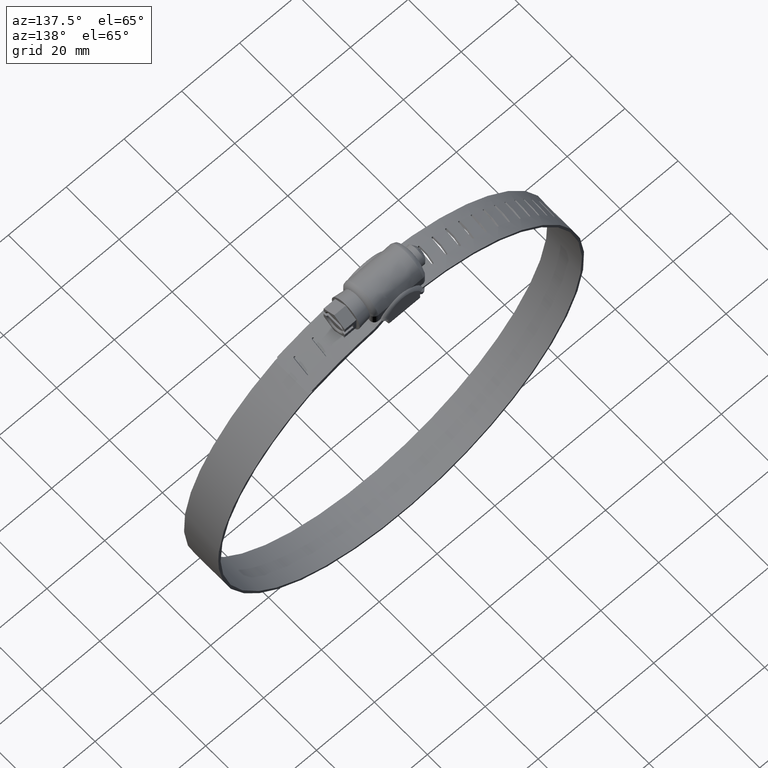
[diagram: clean part render]
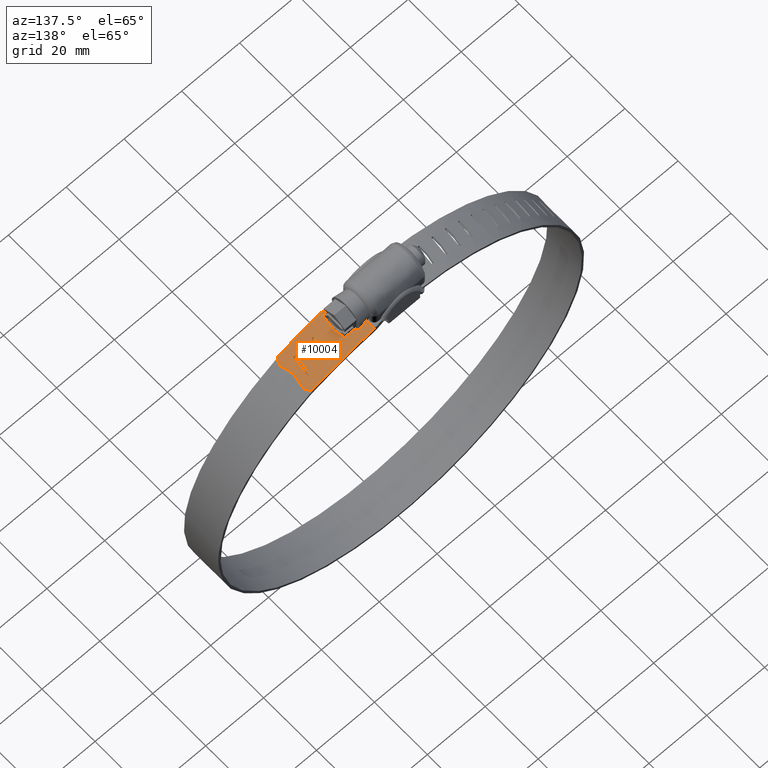
[diagram: same view with one face highlighted and labeled with its STEP entity id]
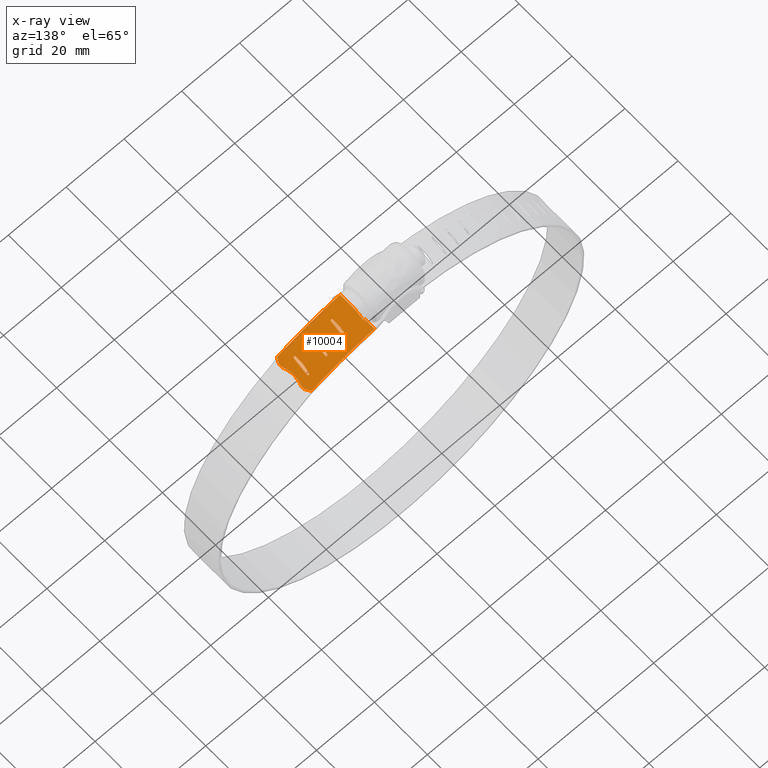
[diagram: x-ray of the same camera — body ghosted, the highlighted face saturated]
A machine part, auxiliary view. The second image highlights one B-rep face of the part: STEP entity #10004.
The next image is the same camera in x-ray: the body ghosted, the highlighted face saturated — about 0% of this face is hidden behind the body in this view.
In plain terms, the highlighted face is a freeform B-spline surface patch.
Its self-contained STEP definition (entity closure, byte-faithful):
#8290=CARTESIAN_POINT('',(31.567367597123400,-2.061301204482620,4.818551866047019));
#8291=VERTEX_POINT('',#8290);
#8292=CARTESIAN_POINT('',(31.567367597123400,2.061301204482865,4.818551866047000));
#8293=VERTEX_POINT('',#8292);
#8294=CARTESIAN_POINT('',(31.567367597123400,-2.061301204482620,4.818551866047019));
#8295=CARTESIAN_POINT('',(31.359252102324209,-1.222315483176892,4.906911757007364));
#8296=CARTESIAN_POINT('',(31.232741156083058,0.179749158686067,4.960624688982378));
#8297=CARTESIAN_POINT('',(31.442790638238169,1.557887481813539,4.871443682266150));
#8298=CARTESIAN_POINT('',(31.567367597123400,2.061301204482865,4.818551866047000));
#8299=B_SPLINE_CURVE_WITH_KNOTS('',3,(#8294,#8295,#8296,#8297,#8298),.UNSPECIFIED.,.F.,.U.,(4,1,4),(0.000000036026217,2.606497819243899,4.170396811498621),.UNSPECIFIED.);
#8300=EDGE_CURVE('',#8291,#8293,#8299,.T.);
#8341=CARTESIAN_POINT('',(31.967261873829099,3.681800700683205,4.646856470161220));
#8342=VERTEX_POINT('',#8341);
#8343=CARTESIAN_POINT('',(31.766142777219802,5.226117512658781,4.733508991008200));
#8344=VERTEX_POINT('',#8343);
#8345=CARTESIAN_POINT('',(31.967261873829099,3.681800700683205,4.646856470161220));
#8346=CARTESIAN_POINT('',(32.023024767648643,3.907534467773651,4.622830736958171));
#8347=CARTESIAN_POINT('',(32.065576458267913,4.448197671426959,4.604497011779581));
#8348=CARTESIAN_POINT('',(31.909388063521622,4.969138916187402,4.671791258001895));
#8349=CARTESIAN_POINT('',(31.766142777219802,5.226117512658781,4.733508991008200));
#8350=B_SPLINE_CURVE_WITH_KNOTS('',3,(#8345,#8346,#8347,#8348,#8349),.UNSPECIFIED.,.F.,.U.,(4,1,4),(0.000000126657784,0.701271897874830,1.602856264230856),.UNSPECIFIED.);
#8351=EDGE_CURVE('',#8342,#8344,#8350,.T.);
#8392=CARTESIAN_POINT('',(31.766142777219802,-5.226117512658931,4.733508991008200));
#8393=VERTEX_POINT('',#8392);
#8394=CARTESIAN_POINT('',(31.967261873829148,-3.681800700683240,4.646856470161190));
#8395=VERTEX_POINT('',#8394);
#8396=CARTESIAN_POINT('',(31.766142777219802,-5.226117512658931,4.733508991008200));
#8397=CARTESIAN_POINT('',(31.909388923875909,-4.969156309651399,4.671690853613392));
#8398=CARTESIAN_POINT('',(32.065583129241674,-4.448206504725769,4.604313598810845));
#8399=CARTESIAN_POINT('',(32.023027622746362,-3.907530052816502,4.622751905894250));
#8400=CARTESIAN_POINT('',(31.967261873829148,-3.681800700683240,4.646856470161190));
#8401=B_SPLINE_CURVE_WITH_KNOTS('',3,(#8396,#8397,#8398,#8399,#8400),.UNSPECIFIED.,.F.,.U.,(4,1,4),(0.000000126840475,0.901602121273802,1.602887632622785),.UNSPECIFIED.);
#8402=EDGE_CURVE('',#8393,#8395,#8401,.T.);
#8533=CARTESIAN_POINT('',(9.627376152439330,2.660775000000000,10.875565962311001));
#8534=VERTEX_POINT('',#8533);
#8540=CARTESIAN_POINT('',(9.253488013358689,3.012298613065150,10.925783664387460));
#8541=VERTEX_POINT('',#8540);
#8542=CARTESIAN_POINT('',(9.627376152439330,2.660775000000000,10.875565962311001));
#8543=CARTESIAN_POINT('',(9.636417148187112,2.704897591910244,10.874409311186371));
#8544=CARTESIAN_POINT('',(9.634305340323261,2.803894741844744,10.874799257863581));
#8545=CARTESIAN_POINT('',(9.555340692460298,2.949960612192733,10.885483871076429));
#8546=CARTESIAN_POINT('',(9.407639261622048,3.030137333683885,10.905257648566240));
#8547=CARTESIAN_POINT('',(9.296477600165165,3.024480571779188,10.920067281729230));
#8548=CARTESIAN_POINT('',(9.253488013358689,3.012298613065150,10.925783664387460));
#8549=B_SPLINE_CURVE_WITH_KNOTS('',3,(#8542,#8543,#8544,#8545,#8546,#8547,#8548),.UNSPECIFIED.,.F.,.U.,(4,1,1,1,4),(0.000001127711989,0.135200140259626,0.289768500560617,0.482881645616490,0.618080658164132),.UNSPECIFIED.);
#8550=EDGE_CURVE('',#8534,#8541,#8549,.T.);
#8620=CARTESIAN_POINT('',(9.253488013358689,-0.889468689487472,10.925783664387460));
#8621=VERTEX_POINT('',#8620);
#8627=CARTESIAN_POINT('',(9.253488013358689,-0.889468689487472,10.925783664387460));
#8628=CARTESIAN_POINT('',(9.627376152439330,2.660775000000000,10.875565962311001));
#8629=QUASI_UNIFORM_CURVE('',1,(#8627,#8628),.UNSPECIFIED.,.F.,.U.);
#8630=EDGE_CURVE('',#8621,#8534,#8629,.T.);
#8747=CARTESIAN_POINT('',(15.083475572383350,0.026072965606650,9.949520309686221));
#8748=VERTEX_POINT('',#8747);
#8754=CARTESIAN_POINT('',(15.051591938738650,-0.282941999999991,9.955994630431059));
#8755=VERTEX_POINT('',#8754);
#8756=CARTESIAN_POINT('',(15.083475572383350,0.026072965606650,9.949520309686221));
#8757=CARTESIAN_POINT('',(15.062266162340579,-0.075410111331970,9.953828797465905));
#8758=CARTESIAN_POINT('',(15.051553267173530,-0.179175275632895,9.956004169104144));
#8759=CARTESIAN_POINT('',(15.051591938738650,-0.282941999999991,9.955994630431059));
#8760=B_SPLINE_CURVE_WITH_KNOTS('',3,(#8756,#8757,#8758,#8759),.UNSPECIFIED.,.F.,.U.,(4,4),(4.844942E-009,0.311305234252040),.UNSPECIFIED.);
#8761=EDGE_CURVE('',#8748,#8755,#8760,.T.);
#8787=CARTESIAN_POINT('',(15.645450989726600,2.723240999999915,9.833326323261391));
#8788=VERTEX_POINT('',#8787);
#8794=CARTESIAN_POINT('',(15.645450989726600,2.723240999999915,9.833326323261391));
#8795=CARTESIAN_POINT('',(15.083475572383350,0.026072965606650,9.949520309686221));
#8796=QUASI_UNIFORM_CURVE('',1,(#8794,#8795),.UNSPECIFIED.,.F.,.U.);
#8797=EDGE_CURVE('',#8788,#8748,#8796,.T.);
#8828=CARTESIAN_POINT('',(16.231340731334850,2.660775000000000,9.707986532453310));
#8829=VERTEX_POINT('',#8828);
#8835=CARTESIAN_POINT('',(15.972489286790690,3.021628469650861,9.763892827731795));
#8836=VERTEX_POINT('',#8835);
#8837=CARTESIAN_POINT('',(16.231340731334850,2.660775000000000,9.707986532453310));
#8838=CARTESIAN_POINT('',(16.241597420287668,2.712195150379346,9.705883252680716));
#8839=CARTESIAN_POINT('',(16.235604892159280,2.809659686561769,9.707329296362854));
#8840=CARTESIAN_POINT('',(16.151002151910589,2.957870999354890,9.725653213825559));
#8841=CARTESIAN_POINT('',(16.044143607241150,3.014319948891103,9.748574749354818));
#8842=CARTESIAN_POINT('',(15.972489286790690,3.021628469650861,9.763892827731795));
#8843=B_SPLINE_CURVE_WITH_KNOTS('',3,(#8837,#8838,#8839,#8840,#8841,#8842),.UNSPECIFIED.,.F.,.U.,(4,1,1,4),(0.000001958210072,0.157492497883717,0.283432821563232,0.503934428868161),.UNSPECIFIED.);
#8844=EDGE_CURVE('',#8829,#8836,#8843,.T.);
#8846=CARTESIAN_POINT('',(15.972489286790690,3.021628469650861,9.763892827731795));
#8847=CARTESIAN_POINT('',(15.931610865642000,3.026067976756749,9.772644070041681));
#8848=CARTESIAN_POINT('',(15.837535584610430,3.016122322039074,9.792748733819911));
#8849=CARTESIAN_POINT('',(15.694394675965800,2.922002593972718,9.823202213165628));
#8850=CARTESIAN_POINT('',(15.645598683404200,2.796974932151916,9.833422541460257));
#8851=CARTESIAN_POINT('',(15.645450989726600,2.723240999999915,9.833326323261391));
#8852=B_SPLINE_CURVE_WITH_KNOTS('',3,(#8846,#8847,#8848,#8849,#8850,#8851),.UNSPECIFIED.,.F.,.U.,(4,1,1,4),(0.000001253553547,0.126207492636540,0.283934196305537,0.504826106113624),.UNSPECIFIED.);
#8853=EDGE_CURVE('',#8836,#8788,#8852,.T.);
#8886=CARTESIAN_POINT('',(15.645450989726649,-2.976759000000185,9.833326323261501));
#8887=VERTEX_POINT('',#8886);
#8893=CARTESIAN_POINT('',(15.645450989726649,-2.976759000000185,9.833326323261501));
#8894=CARTESIAN_POINT('',(16.231340731334850,2.660775000000000,9.707986532453310));
#8895=QUASI_UNIFORM_CURVE('',1,(#8893,#8894),.UNSPECIFIED.,.F.,.U.);
#8896=EDGE_CURVE('',#8887,#8829,#8895,.T.);
#8927=CARTESIAN_POINT('',(15.051591938738650,-2.976759000000185,9.955994630431059));
#8928=VERTEX_POINT('',#8927);
#8934=CARTESIAN_POINT('',(15.348654759469641,-3.276758994362510,9.895182467323204));
#8935=VERTEX_POINT('',#8934);
#8936=CARTESIAN_POINT('',(15.051591938738650,-2.976759000000185,9.955994630431059));
#8937=CARTESIAN_POINT('',(15.051986222441000,-3.016171442504892,9.955985373893652));
#8938=CARTESIAN_POINT('',(15.070094151403270,-3.104709329094481,9.952407143739910));
#8939=CARTESIAN_POINT('',(15.165623303774510,-3.234621038111459,9.932912476203430));
#8940=CARTESIAN_POINT('',(15.280995387609821,-3.277138210806109,9.909158959574313));
#8941=CARTESIAN_POINT('',(15.348654759469641,-3.276758994362510,9.895182467323204));
#8942=B_SPLINE_CURVE_WITH_KNOTS('',3,(#8936,#8937,#8938,#8939,#8940,#8941),.UNSPECIFIED.,.F.,.U.,(4,1,1,4),(0.000001218492454,0.118324086100491,0.266208462667175,0.473292625041223),.UNSPECIFIED.);
#8943=EDGE_CURVE('',#8928,#8935,#8942,.T.);
#8945=CARTESIAN_POINT('',(15.348654759469641,-3.276758994362510,9.895182467323204));
#8946=CARTESIAN_POINT('',(15.396897822520611,-3.276835600603909,9.885217449038930));
#8947=CARTESIAN_POINT('',(15.503115749688350,-3.249832070620958,9.863227457390227));
#8948=CARTESIAN_POINT('',(15.617507329990319,-3.134202844884233,9.839386778511283));
#8949=CARTESIAN_POINT('',(15.645041066519600,-3.026023266391151,9.833501229204249));
#8950=CARTESIAN_POINT('',(15.645450989726649,-2.976759000000185,9.833326323261501));
#8951=B_SPLINE_CURVE_WITH_KNOTS('',3,(#8945,#8946,#8947,#8948,#8949,#8950),.UNSPECIFIED.,.F.,.U.,(4,1,1,4),(0.000001299733220,0.147901996148229,0.325341942136903,0.473242672481916),.UNSPECIFIED.);
#8952=EDGE_CURVE('',#8935,#8887,#8951,.T.);
#8984=CARTESIAN_POINT('',(15.051591938738650,-0.282941999999991,9.955994630431059));
#8985=CARTESIAN_POINT('',(15.051591938738650,-2.976759000000185,9.955994630431059));
#8986=QUASI_UNIFORM_CURVE('',1,(#8984,#8985),.UNSPECIFIED.,.F.,.U.);
#8987=EDGE_CURVE('',#8755,#8928,#8986,.T.);
#9014=CARTESIAN_POINT('',(21.597964113140549,0.026072965606638,8.356714942833479));
#9015=VERTEX_POINT('',#9014);
#9021=CARTESIAN_POINT('',(21.566686735448901,-0.282941999999991,8.365670866472511));
#9022=VERTEX_POINT('',#9021);
#9023=CARTESIAN_POINT('',(21.597964113140549,0.026072965606638,8.356714942833479));
#9024=CARTESIAN_POINT('',(21.577151653235632,-0.075410240383017,8.362676074195798));
#9025=CARTESIAN_POINT('',(21.566655235201718,-0.179176803818021,8.365681603827596));
#9026=CARTESIAN_POINT('',(21.566686735448901,-0.282941999999991,8.365670866472511));
#9027=B_SPLINE_CURVE_WITH_KNOTS('',3,(#9023,#9024,#9025,#9026),.UNSPECIFIED.,.F.,.U.,(4,4),(4.844941E-009,0.311305234252023),.UNSPECIFIED.);
#9028=EDGE_CURVE('',#9015,#9022,#9027,.T.);
#9054=CARTESIAN_POINT('',(22.149090672718248,2.723240999999915,8.196787060625210));
#9055=VERTEX_POINT('',#9054);
#9061=CARTESIAN_POINT('',(22.149090672718248,2.723240999999915,8.196787060625210));
#9062=CARTESIAN_POINT('',(21.597964113140549,0.026072965606638,8.356714942833479));
#9063=QUASI_UNIFORM_CURVE('',1,(#9061,#9062),.UNSPECIFIED.,.F.,.U.);
#9064=EDGE_CURVE('',#9055,#9015,#9063,.T.);
#9095=CARTESIAN_POINT('',(22.723340265138351,2.660775000000000,8.025865271239070));
#9096=VERTEX_POINT('',#9095);
#9102=CARTESIAN_POINT('',(22.469673130583029,3.021628469650863,8.101908476333934));
#9103=VERTEX_POINT('',#9102);
#9104=CARTESIAN_POINT('',(22.723340265138351,2.660775000000000,8.025865271239070));
#9105=CARTESIAN_POINT('',(22.737755885414781,2.732867202534254,8.021704743519324));
#9106=CARTESIAN_POINT('',(22.717614856773810,2.854054848970019,8.027903344759331));
#9107=CARTESIAN_POINT('',(22.607032935292061,2.981085264149725,8.061000483507312));
#9108=CARTESIAN_POINT('',(22.519703691058002,3.016193017248475,8.087024775325681));
#9109=CARTESIAN_POINT('',(22.469673130583029,3.021628469650863,8.101908476333934));
#9110=B_SPLINE_CURVE_WITH_KNOTS('',3,(#9104,#9105,#9106,#9107,#9108,#9109),.UNSPECIFIED.,.F.,.U.,(4,1,1,4),(0.000001958210167,0.220503565482019,0.346443889184330,0.503934428868452),.UNSPECIFIED.);
#9111=EDGE_CURVE('',#9096,#9103,#9110,.T.);
#9113=CARTESIAN_POINT('',(22.469673130583029,3.021628469650863,8.101908476333934));
#9114=CARTESIAN_POINT('',(22.409550235715290,3.028453677949730,8.119813297484319));
#9115=CARTESIAN_POINT('',(22.295731287198461,3.003164737525374,8.153641428399814));
#9116=CARTESIAN_POINT('',(22.177310176418761,2.880563799294565,8.188667079495806));
#9117=CARTESIAN_POINT('',(22.149409634727331,2.775855824553438,8.196785186235930));
#9118=CARTESIAN_POINT('',(22.149090672718248,2.723240999999915,8.196787060625210));
#9119=B_SPLINE_CURVE_WITH_KNOTS('',3,(#9113,#9114,#9115,#9116,#9117,#9118),.UNSPECIFIED.,.F.,.U.,(4,1,1,4),(0.000001253553463,0.189338970172967,0.347056723533111,0.504826106113142),.UNSPECIFIED.);
#9120=EDGE_CURVE('',#9103,#9055,#9119,.T.);
#9153=CARTESIAN_POINT('',(22.149090672718248,-2.976759000000185,8.196787060625210));
#9154=VERTEX_POINT('',#9153);
#9160=CARTESIAN_POINT('',(22.149090672718248,-2.976759000000185,8.196787060625210));
#9161=CARTESIAN_POINT('',(22.723340265138351,2.660775000000000,8.025865271239070));
#9162=QUASI_UNIFORM_CURVE('',1,(#9160,#9161),.UNSPECIFIED.,.F.,.U.);
#9163=EDGE_CURVE('',#9154,#9096,#9162,.T.);
#9194=CARTESIAN_POINT('',(21.566686735448901,-2.976759000000185,8.365670866472511));
#9195=VERTEX_POINT('',#9194);
#9201=CARTESIAN_POINT('',(21.858062543316340,-3.276758994362509,8.281738886679573));
#9202=VERTEX_POINT('',#9201);
#9203=CARTESIAN_POINT('',(21.566686735448901,-2.976759000000185,8.365670866472511));
#9204=CARTESIAN_POINT('',(21.567079077446628,-3.016171442504867,8.365630703327156));
#9205=CARTESIAN_POINT('',(21.584850441004921,-3.104709329094380,8.360642771930907));
#9206=CARTESIAN_POINT('',(21.678555574894151,-3.234621038111344,8.333713069037710));
#9207=CARTESIAN_POINT('',(21.791708325663269,-3.277138210806037,8.300980787203114));
#9208=CARTESIAN_POINT('',(21.858062543316340,-3.276758994362509,8.281738886679573));
#9209=B_SPLINE_CURVE_WITH_KNOTS('',3,(#9203,#9204,#9205,#9206,#9207,#9208),.UNSPECIFIED.,.F.,.U.,(4,1,1,4),(0.000001218492302,0.118324086100351,0.266208462666985,0.473292625040969),.UNSPECIFIED.);
#9210=EDGE_CURVE('',#9195,#9202,#9209,.T.);
#9212=CARTESIAN_POINT('',(21.858062543316340,-3.276758994362509,8.281738886679573));
#9213=CARTESIAN_POINT('',(21.924403070718231,-3.277125392956378,8.262502325662339));
#9214=CARTESIAN_POINT('',(22.037518444743650,-3.234607921412811,8.229622031863180));
#9215=CARTESIAN_POINT('',(22.131043866676780,-3.104690727079668,8.202259150557955));
#9216=CARTESIAN_POINT('',(22.148740921000421,-3.016162876856863,8.196962071668091));
#9217=CARTESIAN_POINT('',(22.149090672718248,-2.976759000000185,8.196787060625210));
#9218=B_SPLINE_CURVE_WITH_KNOTS('',3,(#9212,#9213,#9214,#9215,#9216,#9217),.UNSPECIFIED.,.F.,.U.,(4,1,1,4),(0.000001299733178,0.207063565770869,0.354932313326631,0.473242672482194),.UNSPECIFIED.);
#9219=EDGE_CURVE('',#9202,#9154,#9218,.T.);
#9251=CARTESIAN_POINT('',(21.566686735448901,-0.282941999999991,8.365670866472511));
#9252=CARTESIAN_POINT('',(21.566686735448901,-2.976759000000185,8.365670866472511));
#9253=QUASI_UNIFORM_CURVE('',1,(#9251,#9252),.UNSPECIFIED.,.F.,.U.);
#9254=EDGE_CURVE('',#9022,#9195,#9253,.T.);
#9278=CARTESIAN_POINT('',(31.057078626003349,-6.500000000000000,5.034154456385170));
#9279=VERTEX_POINT('',#9278);
#9280=CARTESIAN_POINT('',(31.057078626003349,-6.500000000000000,5.034154456385170));
#9281=CARTESIAN_POINT('',(31.766142777219802,-5.226117512658931,4.733508991008200));
#9282=QUASI_UNIFORM_CURVE('',1,(#9280,#9281),.UNSPECIFIED.,.F.,.U.);
#9283=EDGE_CURVE('',#9279,#8393,#9282,.T.);
#9298=CARTESIAN_POINT('',(31.057078626003300,6.500000000000000,5.034154456385000));
#9299=VERTEX_POINT('',#9298);
#9300=CARTESIAN_POINT('',(31.766142777219802,5.226117512658781,4.733508991008200));
#9301=CARTESIAN_POINT('',(31.057078626003300,6.500000000000000,5.034154456385000));
#9302=QUASI_UNIFORM_CURVE('',1,(#9300,#9301),.UNSPECIFIED.,.F.,.U.);
#9303=EDGE_CURVE('',#8344,#9299,#9302,.T.);
#9332=CARTESIAN_POINT('',(31.967261873829148,-3.681800700683240,4.646856470161190));
#9333=CARTESIAN_POINT('',(31.567367597123400,-2.061301204482620,4.818551866047019));
#9334=QUASI_UNIFORM_CURVE('',1,(#9332,#9333),.UNSPECIFIED.,.F.,.U.);
#9335=EDGE_CURVE('',#8395,#8291,#9334,.T.);
#9346=CARTESIAN_POINT('',(31.567367597123400,2.061301204482865,4.818551866047000));
#9347=CARTESIAN_POINT('',(31.967261873829099,3.681800700683205,4.646856470161220));
#9348=QUASI_UNIFORM_CURVE('',1,(#9346,#9347),.UNSPECIFIED.,.F.,.U.);
#9349=EDGE_CURVE('',#8293,#8342,#9348,.T.);
#9377=CARTESIAN_POINT('',(27.967400591073751,0.026072965606638,6.257698783317570));
#9378=VERTEX_POINT('',#9377);
#9384=CARTESIAN_POINT('',(27.936922304769251,-0.282941999999991,6.269081093603300));
#9385=VERTEX_POINT('',#9384);
#9386=CARTESIAN_POINT('',(27.967400591073751,0.026072965606638,6.257698783317570));
#9387=CARTESIAN_POINT('',(27.947119994013029,-0.075410240383013,6.265274465285330));
#9388=CARTESIAN_POINT('',(27.936891744070039,-0.179176803818021,6.269094269339647));
#9389=CARTESIAN_POINT('',(27.936922304769251,-0.282941999999991,6.269081093603300));
#9390=B_SPLINE_CURVE_WITH_KNOTS('',3,(#9386,#9387,#9388,#9389),.UNSPECIFIED.,.F.,.U.,(4,4),(4.844947E-009,0.311305234252032),.UNSPECIFIED.);
#9391=EDGE_CURVE('',#9378,#9385,#9390,.T.);
#9417=CARTESIAN_POINT('',(28.504280414377551,2.723240999999915,6.055023013900819));
#9418=VERTEX_POINT('',#9417);
#9424=CARTESIAN_POINT('',(28.504280414377551,2.723240999999915,6.055023013900819));
#9425=CARTESIAN_POINT('',(27.967400591073751,0.026072965606638,6.257698783317570));
#9426=QUASI_UNIFORM_CURVE('',1,(#9424,#9425),.UNSPECIFIED.,.F.,.U.);
#9427=EDGE_CURVE('',#9418,#9378,#9426,.T.);
#9458=CARTESIAN_POINT('',(29.063349417914949,2.660775000000000,5.839573015605819));
#9459=VERTEX_POINT('',#9458);
#9465=CARTESIAN_POINT('',(28.816430535586431,3.021628469650857,5.935284298870529));
#9466=VERTEX_POINT('',#9465);
#9467=CARTESIAN_POINT('',(29.063349417914949,2.660775000000000,5.839573015605819));
#9468=CARTESIAN_POINT('',(29.073157329161209,2.712205035365610,5.835888636631610));
#9469=CARTESIAN_POINT('',(29.067446180454841,2.809656403256296,5.838261456500273));
#9470=CARTESIAN_POINT('',(28.986762252316041,2.957828631005152,5.869590363522166));
#9471=CARTESIAN_POINT('',(28.884804549184459,3.014376993495904,5.908946419448006));
#9472=CARTESIAN_POINT('',(28.816430535586431,3.021628469650857,5.935284298870529));
#9473=B_SPLINE_CURVE_WITH_KNOTS('',3,(#9467,#9468,#9469,#9470,#9471,#9472),.UNSPECIFIED.,.F.,.U.,(4,1,1,4),(0.000001958210278,0.157492497883948,0.283432821563459,0.503934428868370),.UNSPECIFIED.);
#9474=EDGE_CURVE('',#9459,#9466,#9473,.T.);
#9476=CARTESIAN_POINT('',(28.816430535586431,3.021628469650857,5.935284298870529));
#9477=CARTESIAN_POINT('',(28.767624273705710,3.027273419384963,5.954101059918260));
#9478=CARTESIAN_POINT('',(28.677513502119979,3.011912042579525,5.988795520781215));
#9479=CARTESIAN_POINT('',(28.547159629822961,2.911483955317478,6.038842321910598));
#9480=CARTESIAN_POINT('',(28.504441942637008,2.797008683381831,6.055094772803087));
#9481=CARTESIAN_POINT('',(28.504280414377551,2.723240999999915,6.055023013900819));
#9482=B_SPLINE_CURVE_WITH_KNOTS('',3,(#9476,#9477,#9478,#9479,#9480,#9481),.UNSPECIFIED.,.F.,.U.,(4,1,1,4),(0.000001253553525,0.157770845352441,0.283934196305291,0.504826106113269),.UNSPECIFIED.);
#9483=EDGE_CURVE('',#9466,#9418,#9482,.T.);
#9516=CARTESIAN_POINT('',(28.504280414377650,-2.976759000000185,6.055023013901040));
#9517=VERTEX_POINT('',#9516);
#9523=CARTESIAN_POINT('',(28.504280414377650,-2.976759000000185,6.055023013901040));
#9524=CARTESIAN_POINT('',(29.063349417914949,2.660775000000000,5.839573015605819));
#9525=QUASI_UNIFORM_CURVE('',1,(#9523,#9524),.UNSPECIFIED.,.F.,.U.);
#9526=EDGE_CURVE('',#9517,#9459,#9525,.T.);
#9557=CARTESIAN_POINT('',(27.936922304769251,-2.976759000000185,6.269081093603300));
#9558=VERTEX_POINT('',#9557);
#9564=CARTESIAN_POINT('',(28.220814671025330,-3.276758994362509,6.162546765691076));
#9565=VERTEX_POINT('',#9564);
#9566=CARTESIAN_POINT('',(27.936922304769251,-2.976759000000185,6.269081093603300));
#9567=CARTESIAN_POINT('',(27.937307177258418,-3.016167029241758,6.269011435956478));
#9568=CARTESIAN_POINT('',(27.954649791250471,-3.104704200766034,6.262637996088244));
#9569=CARTESIAN_POINT('',(28.045922854469978,-3.234629411466175,6.228450757048214));
#9570=CARTESIAN_POINT('',(28.156181601745249,-3.277136915049303,6.186932836616223));
#9571=CARTESIAN_POINT('',(28.220814671025330,-3.276758994362509,6.162546765691076));
#9572=B_SPLINE_CURVE_WITH_KNOTS('',3,(#9566,#9567,#9568,#9569,#9570,#9571),.UNSPECIFIED.,.F.,.U.,(4,1,1,4),(0.000001218492543,0.118324086100422,0.266208462666882,0.473292625040671),.UNSPECIFIED.);
#9573=EDGE_CURVE('',#9558,#9565,#9572,.T.);
#9575=CARTESIAN_POINT('',(28.220814671025330,-3.276758994362509,6.162546765691076));
#9576=CARTESIAN_POINT('',(28.257684728862529,-3.276788729415581,6.148636141868844));
#9577=CARTESIAN_POINT('',(28.340675080099480,-3.259253916886252,6.117291148073552));
#9578=CARTESIAN_POINT('',(28.463129683720311,-3.163170013608299,6.070906122197813));
#9579=CARTESIAN_POINT('',(28.503982157316660,-3.045834462313750,6.055267970122626));
#9580=CARTESIAN_POINT('',(28.504280414377650,-2.976759000000185,6.055023013901040));
#9581=B_SPLINE_CURVE_WITH_KNOTS('',3,(#9575,#9576,#9577,#9578,#9579,#9580),.UNSPECIFIED.,.F.,.U.,(4,1,1,4),(0.000001299733392,0.118311626951980,0.266180356817472,0.473242672482432),.UNSPECIFIED.);
#9582=EDGE_CURVE('',#9565,#9517,#9581,.T.);
#9614=CARTESIAN_POINT('',(27.936922304769251,-0.282941999999991,6.269081093603300));
#9615=CARTESIAN_POINT('',(27.936922304769251,-2.976759000000185,6.269081093603300));
#9616=QUASI_UNIFORM_CURVE('',1,(#9614,#9615),.UNSPECIFIED.,.F.,.U.);
#9617=EDGE_CURVE('',#9385,#9558,#9616,.T.);
#9690=CARTESIAN_POINT('',(9.253488013358689,6.500000000000000,10.925783664387460));
#9691=VERTEX_POINT('',#9690);
#9692=CARTESIAN_POINT('',(9.253488013358689,6.500000000000000,10.925783664387460));
#9693=CARTESIAN_POINT('',(9.253488013358689,3.012298613065150,10.925783664387460));
#9694=QUASI_UNIFORM_CURVE('',1,(#9692,#9693),.UNSPECIFIED.,.F.,.U.);
#9695=EDGE_CURVE('',#9691,#8541,#9694,.T.);
#9705=CARTESIAN_POINT('',(9.253488013358689,-6.500000000000000,10.925783664387460));
#9706=VERTEX_POINT('',#9705);
#9714=CARTESIAN_POINT('',(9.253488013358689,-0.889468689487472,10.925783664387460));
#9715=CARTESIAN_POINT('',(9.253488013358689,-6.500000000000000,10.925783664387460));
#9716=QUASI_UNIFORM_CURVE('',1,(#9714,#9715),.UNSPECIFIED.,.F.,.U.);
#9717=EDGE_CURVE('',#8621,#9706,#9716,.T.);
#9881=CARTESIAN_POINT('',(31.057078626003349,-6.500000000000000,5.034154456385170));
#9882=CARTESIAN_POINT('',(27.030644955682948,-6.500000000000012,6.720280887757347));
#9883=CARTESIAN_POINT('',(19.841765411471751,-6.500000000000004,9.100935781282944));
#9884=CARTESIAN_POINT('',(12.411498701510549,-6.499999999999978,10.508780128188951));
#9885=CARTESIAN_POINT('',(9.253488013358689,-6.500000000000000,10.925783664387460));
#9886=B_SPLINE_CURVE_WITH_KNOTS('',3,(#9881,#9882,#9883,#9884,#9885),.UNSPECIFIED.,.F.,.U.,(4,1,4),(2.658822E-009,13.095632184284570,22.651912193307322),.UNSPECIFIED.);
#9887=EDGE_CURVE('',#9279,#9706,#9886,.T.);
#9916=CARTESIAN_POINT('',(31.057078626003300,6.500000000000000,5.034154456385000));
#9917=CARTESIAN_POINT('',(28.336468463755939,6.499999999999995,6.173287368838098));
#9918=CARTESIAN_POINT('',(21.220488690372719,6.500000000000015,8.728343241864225));
#9919=CARTESIAN_POINT('',(13.815114381912810,6.499999999999975,10.323694843272200));
#9920=CARTESIAN_POINT('',(9.253488013358689,6.500000000000000,10.925783664387460));
#9921=B_SPLINE_CURVE_WITH_KNOTS('',3,(#9916,#9917,#9918,#9919,#9920),.UNSPECIFIED.,.F.,.U.,(4,1,4),(2.660158E-009,8.848411303312116,22.651912193307322),.UNSPECIFIED.);
#9922=EDGE_CURVE('',#9299,#9691,#9921,.T.);
#9945=CARTESIAN_POINT('',(33.107937622387333,-6.825000000000000,4.143746661393440));
#9946=CARTESIAN_POINT('',(33.107937622387333,6.833125000000003,4.143746661393440));
#9947=CARTESIAN_POINT('',(21.127594176061301,-6.825000000000000,9.532618033566683));
#9948=CARTESIAN_POINT('',(21.127594176061301,6.833125000000002,9.532618033566683));
#9949=CARTESIAN_POINT('',(8.081602221430606,-6.825000000000001,11.072312054295075));
#9950=CARTESIAN_POINT('',(8.081602221430606,6.833125000000003,11.072312054295075));
#9958=(BOUNDED_SURFACE()B_SPLINE_SURFACE(1,2,((#9945,#9947,#9949),(#9946,#9948,#9950)),.UNSPECIFIED.,.F.,.F.,.U.)B_SPLINE_SURFACE_WITH_KNOTS((2,2),(3,3),(0.0,13.658125000000000),(0.0,26.119496372230429),.UNSPECIFIED.)GEOMETRIC_REPRESENTATION_ITEM()RATIONAL_B_SPLINE_SURFACE(((0.998474033132935,0.985874488721511,0.996461489187164),(0.998474033132935,0.985874488721511,0.996461489187164)))REPRESENTATION_ITEM('')SURFACE());
#9959=ORIENTED_EDGE('',*,*,#9283,.T.);
#9960=ORIENTED_EDGE('',*,*,#8402,.T.);
#9961=ORIENTED_EDGE('',*,*,#9335,.T.);
#9962=ORIENTED_EDGE('',*,*,#8300,.T.);
#9963=ORIENTED_EDGE('',*,*,#9349,.T.);
#9964=ORIENTED_EDGE('',*,*,#8351,.T.);
#9965=ORIENTED_EDGE('',*,*,#9303,.T.);
#9966=ORIENTED_EDGE('',*,*,#9922,.T.);
#9967=ORIENTED_EDGE('',*,*,#9695,.T.);
#9968=ORIENTED_EDGE('',*,*,#8550,.F.);
#9969=ORIENTED_EDGE('',*,*,#8630,.F.);
#9970=ORIENTED_EDGE('',*,*,#9717,.T.);
#9971=ORIENTED_EDGE('',*,*,#9887,.F.);
#9972=EDGE_LOOP('',(#9959,#9960,#9961,#9962,#9963,#9964,#9965,#9966,#9967,#9968,#9969,#9970,#9971));
#9973=FACE_OUTER_BOUND('',#9972,.T.);
#9974=ORIENTED_EDGE('',*,*,#8987,.F.);
#9975=ORIENTED_EDGE('',*,*,#8761,.F.);
#9976=ORIENTED_EDGE('',*,*,#8797,.F.);
#9977=ORIENTED_EDGE('',*,*,#8853,.F.);
#9978=ORIENTED_EDGE('',*,*,#8844,.F.);
#9979=ORIENTED_EDGE('',*,*,#8896,.F.);
#9980=ORIENTED_EDGE('',*,*,#8952,.F.);
#9981=ORIENTED_EDGE('',*,*,#8943,.F.);
#9982=EDGE_LOOP('',(#9974,#9975,#9976,#9977,#9978,#9979,#9980,#9981));
#9983=FACE_BOUND('',#9982,.T.);
#9984=ORIENTED_EDGE('',*,*,#9254,.F.);
#9985=ORIENTED_EDGE('',*,*,#9028,.F.);
#9986=ORIENTED_EDGE('',*,*,#9064,.F.);
#9987=ORIENTED_EDGE('',*,*,#9120,.F.);
#9988=ORIENTED_EDGE('',*,*,#9111,.F.);
#9989=ORIENTED_EDGE('',*,*,#9163,.F.);
#9990=ORIENTED_EDGE('',*,*,#9219,.F.);
#9991=ORIENTED_EDGE('',*,*,#9210,.F.);
#9992=EDGE_LOOP('',(#9984,#9985,#9986,#9987,#9988,#9989,#9990,#9991));
#9993=FACE_BOUND('',#9992,.T.);
#9994=ORIENTED_EDGE('',*,*,#9617,.F.);
#9995=ORIENTED_EDGE('',*,*,#9391,.F.);
#9996=ORIENTED_EDGE('',*,*,#9427,.F.);
#9997=ORIENTED_EDGE('',*,*,#9483,.F.);
#9998=ORIENTED_EDGE('',*,*,#9474,.F.);
#9999=ORIENTED_EDGE('',*,*,#9526,.F.);
#10000=ORIENTED_EDGE('',*,*,#9582,.F.);
#10001=ORIENTED_EDGE('',*,*,#9573,.F.);
#10002=EDGE_LOOP('',(#9994,#9995,#9996,#9997,#9998,#9999,#10000,#10001));
#10003=FACE_BOUND('',#10002,.T.);
#10004=ADVANCED_FACE('',(#9973,#9983,#9993,#10003),#9958,.T.);